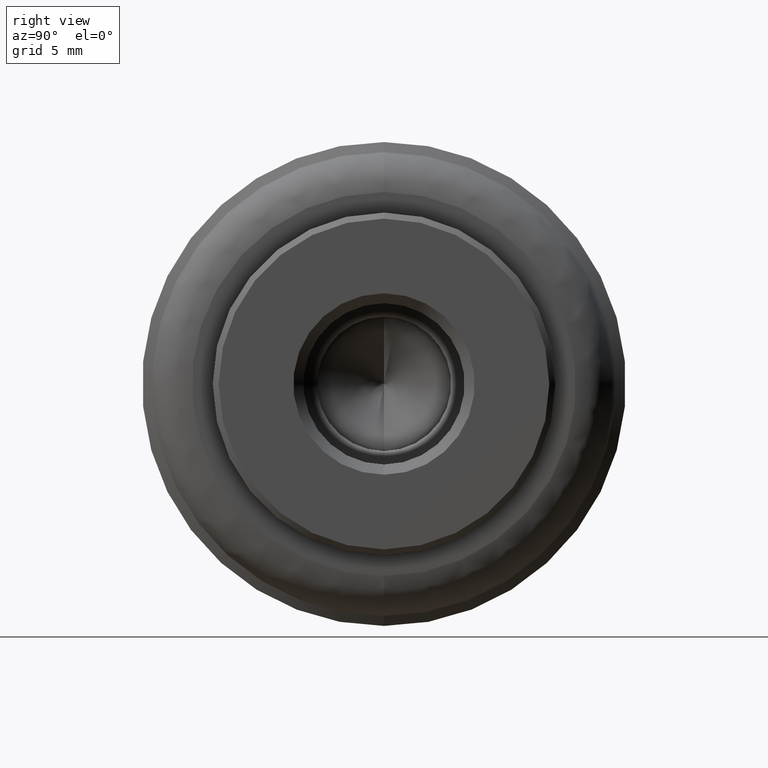
[diagram: clean part render]
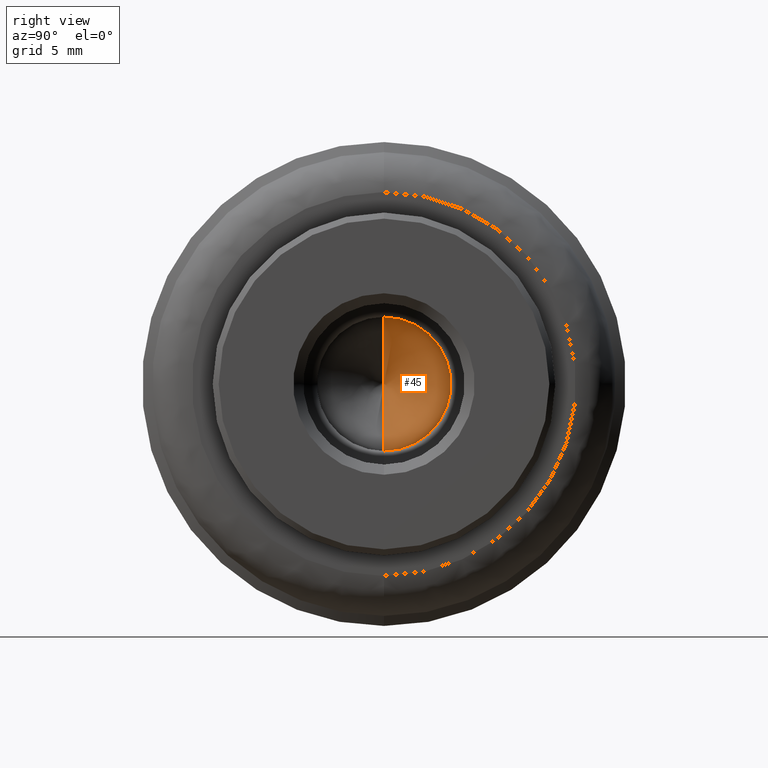
[diagram: same view with one face highlighted and labeled with its STEP entity id]
A machine part, right view. The second image highlights one B-rep face of the part: STEP entity #45.
In plain terms, the highlighted face is a freeform B-spline surface patch.
Its self-contained STEP definition (entity closure, byte-faithful):
#45=ADVANCED_FACE('',(#126),#125,.F.);
#125=( BOUNDED_SURFACE() B_SPLINE_SURFACE( 2,1,((#429,#430),(#431,#432),(#433,#434),(#435,#436),(#437,#438)), .UNSPECIFIED.,.F.,.F.,.F.) B_SPLINE_SURFACE_WITH_KNOTS((3,2,3),(2,2),(0.00000000000E+00,5.00000000000E-01,1.00000000000E+00),(0.00000000000E+00,1.00000000000E+00), .UNSPECIFIED. ) GEOMETRIC_REPRESENTATION_ITEM() RATIONAL_B_SPLINE_SURFACE(((1.00000000000E+00,1.00000000000E+00),(7.07106781187E-01,7.07106781187E-01),(1.00000000000E+00,1.00000000000E+00),(7.07106781187E-01,7.07106781187E-01),(1.00000000000E+00,1.00000000000E+00))) REPRESENTATION_ITEM('') SURFACE() );
#126=FACE_OUTER_BOUND('',#439,.T.);
#429=CARTESIAN_POINT('',(-1.20759600191E+01,0.00000000000E+00,0.00000000000E+00));
#430=CARTESIAN_POINT('',(-9.36110888754E+00,2.66408374745E-15,-4.70226009489E+00));
#431=CARTESIAN_POINT('',(-1.20759600191E+01,0.00000000000E+00,0.00000000000E+00));
#432=CARTESIAN_POINT('',(-9.36110888754E+00,4.70226009489E+00,-4.70226009489E+00));
#433=CARTESIAN_POINT('',(-1.20759600191E+01,0.00000000000E+00,0.00000000000E+00));
#434=CARTESIAN_POINT('',(-9.36110888754E+00,4.70226009489E+00,2.37615335875E-15));
#435=CARTESIAN_POINT('',(-1.20759600191E+01,0.00000000000E+00,0.00000000000E+00));
#436=CARTESIAN_POINT('',(-9.36110888754E+00,4.70226009489E+00,4.70226009489E+00));
#437=CARTESIAN_POINT('',(-1.20759600191E+01,0.00000000000E+00,0.00000000000E+00));
#438=CARTESIAN_POINT('',(-9.36110888754E+00,-2.08822297005E-15,4.70226009489E+00));
#439=EDGE_LOOP('',(#731,#732,#733));
#731=ORIENTED_EDGE('',*,*,#855,.F.);
#732=ORIENTED_EDGE('',*,*,#852,.F.);
#733=ORIENTED_EDGE('',*,*,#854,.T.);
#852=EDGE_CURVE('',#998,#999,#1000,.T.);
#854=EDGE_CURVE('',#998,#1006,#1013,.T.);
#855=EDGE_CURVE('',#999,#1006,#1019,.T.);
#998=VERTEX_POINT('',#1377);
#999=VERTEX_POINT('',#1378);
#1000=(BOUNDED_CURVE() B_SPLINE_CURVE(1,(#1379,#1380),.UNSPECIFIED.,.F.,.F.) B_SPLINE_CURVE_WITH_KNOTS((2,2),(0.00000000000E+00,7.07106786966E-01),.UNSPECIFIED.) CURVE() GEOMETRIC_REPRESENTATION_ITEM() RATIONAL_B_SPLINE_CURVE((1.00000000000E+00,1.00000000000E+00)) REPRESENTATION_ITEM('') );
#1006=VERTEX_POINT('',#1381);
#1013=(BOUNDED_CURVE() B_SPLINE_CURVE(1,(#1386,#1387),.UNSPECIFIED.,.F.,.F.) B_SPLINE_CURVE_WITH_KNOTS((2,2),(0.00000000000E+00,7.07106781187E-01),.UNSPECIFIED.) CURVE() GEOMETRIC_REPRESENTATION_ITEM() RATIONAL_B_SPLINE_CURVE((7.50000000000E-01,7.50000000000E-01)) REPRESENTATION_ITEM('') );
#1019=CIRCLE('',#1391,3.32500000000E+00);
#1377=CARTESIAN_POINT('',(-1.20759600191E+01,-0.00000000000E+00,8.52651282912E-14));
#1378=CARTESIAN_POINT('',(-1.01562703741E+01,0.00000000000E+00,3.32500000000E+00));
#1379=CARTESIAN_POINT('',(-1.20759600191E+01,0.00000000000E+00,0.00000000000E+00));
#1380=CARTESIAN_POINT('',(-1.01562703584E+01,-8.14363231948E-16,3.32500002718E+00));
#1381=CARTESIAN_POINT('',(-1.01562703741E+01,0.00000000000E+00,-3.32500000000E+00));
#1386=CARTESIAN_POINT('',(-1.20759600191E+01,0.00000000000E+00,0.00000000000E+00));
#1387=CARTESIAN_POINT('',(-1.01562703741E+01,1.25607396695E-15,-3.32500000000E+00));
#1388=CARTESIAN_POINT('',(-1.01562703741E+01,0.00000000000E+00,0.00000000000E+00));
#1389=DIRECTION('',(-1.00000000000E+00,0.00000000000E+00,0.00000000000E+00));
#1390=DIRECTION('',(0.00000000000E+00,-1.22460635382E-16,1.00000000000E+00));
#1391=AXIS2_PLACEMENT_3D('',#1388,#1389,#1390);